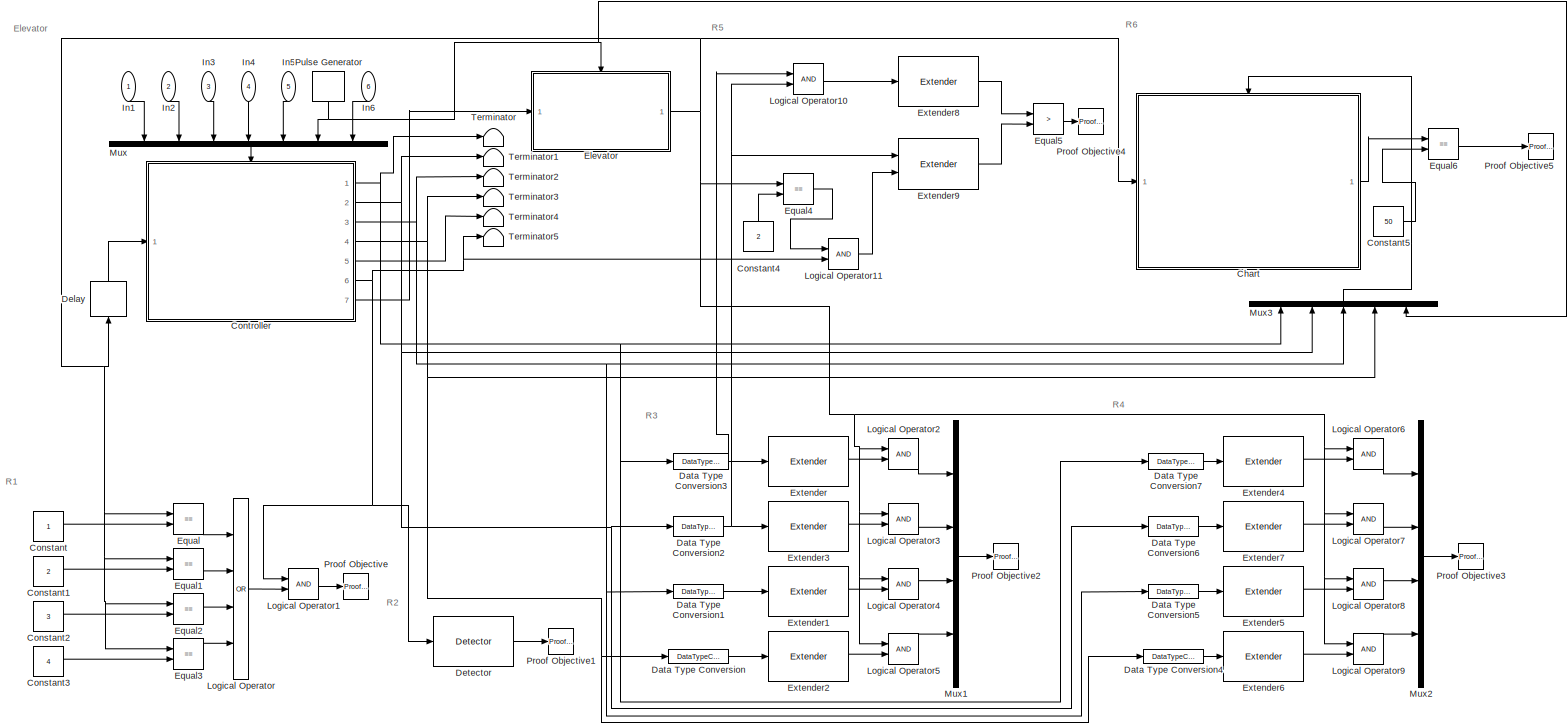
[diagram: root canvas - part 1/2, most of the canvas]
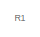
[diagram: root canvas - part 2/2, middle left region]
MODEL slx_c808c042c17c
KIND model
CONFIG AbsTol = auto
CONFIG EnableMultiTasking = off
CONFIG FixedStep = 0.01
CONFIG MaxStep = auto
CONFIG MinStep = auto
CONFIG RelTol = 1e-3
CONFIG SampleTimeConstraint = Unconstrained
CONFIG Solver = FixedStepAuto
CONFIG SolverName = FixedStepAuto
CONFIG StartTime = 0.0
CONFIG StopTime = 40000
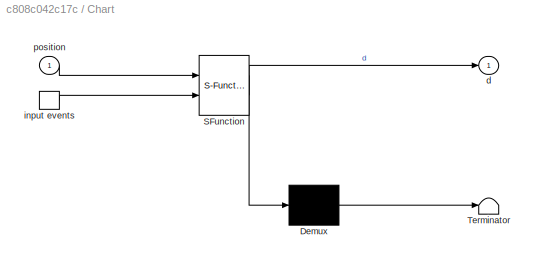
BLOCK [SubSystem] Chart
  ErrorFcn = Stateflow.Translate.translate
  PermitHierarchicalResolution = ExplicitOnly
  Ports = [1, 1, 0, 1]
  RequestExecContextInheritance = off
  SFBlockType = Chart
  TreatAsAtomicUnit = on
BLOCK [Demux] Chart/ Demux 
  Outputs = 1
  Ports = [1, 1]
BLOCK [S-Function] Chart/ SFunction 
  EnableBusSupport = on
  FunctionName = sf_sfun
  PortCounts = [2 2]
  Ports = [2, 2]
  SFcnIsStateOwnerBlock = off
  SFunctionDeploymentMode = off
  Tag = Stateflow S-Function 2
BLOCK [Terminator] Chart/ Terminator 
BLOCK [Outport] Chart/d
BLOCK [TriggerPort] Chart/input events
  Ports = [0, 1]
  ShowOutputPort = on
  StatesWhenEnabling = held
  TriggerType = either
  VariantControl = (inherit)
BLOCK [Inport] Chart/position
BLOCK [Constant] Constant
BLOCK [Constant] Constant1
  Value = 2
BLOCK [Constant] Constant2
  Value = 3
BLOCK [Constant] Constant3
  Value = 4
BLOCK [Constant] Constant4
  NameLocation = right
  Value = 2
BLOCK [Constant] Constant5
  Value = 50
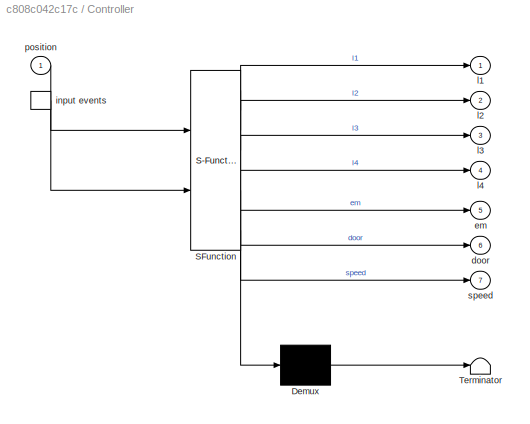
BLOCK [SubSystem] Controller
  ErrorFcn = Stateflow.Translate.translate
  PermitHierarchicalResolution = ExplicitOnly
  Ports = [1, 7, 0, 1]
  RequestExecContextInheritance = off
  SFBlockType = Chart
  TreatAsAtomicUnit = on
BLOCK [Demux] Controller/ Demux 
  Outputs = 1
  Ports = [1, 1]
BLOCK [S-Function] Controller/ SFunction 
  EnableBusSupport = on
  FunctionName = sf_sfun
  PortCounts = [2 8]
  Ports = [2, 8]
  SFcnIsStateOwnerBlock = off
  SFunctionDeploymentMode = off
  Tag = Stateflow S-Function 3
BLOCK [Terminator] Controller/ Terminator 
BLOCK [Outport] Controller/door
  Port = 6
BLOCK [Outport] Controller/em
  Port = 5
BLOCK [TriggerPort] Controller/input events
  Ports = [0, 1]
  ShowOutputPort = on
  StatesWhenEnabling = held
  TriggerType = either
  VariantControl = (inherit)
BLOCK [Outport] Controller/l1
BLOCK [Outport] Controller/l2
  Port = 2
BLOCK [Outport] Controller/l3
  Port = 3
BLOCK [Outport] Controller/l4
  Port = 4
BLOCK [Inport] Controller/position
BLOCK [Outport] Controller/speed
  Port = 7
BLOCK [DataTypeConversion] Data Type Conversion
  OutDataTypeStr = boolean
  RndMeth = Floor
  SaturateOnIntegerOverflow = off
BLOCK [DataTypeConversion] Data Type Conversion1
  OutDataTypeStr = boolean
  RndMeth = Floor
  SaturateOnIntegerOverflow = off
BLOCK [DataTypeConversion] Data Type Conversion2
  OutDataTypeStr = boolean
  RndMeth = Floor
  SaturateOnIntegerOverflow = off
BLOCK [DataTypeConversion] Data Type Conversion3
  OutDataTypeStr = boolean
  RndMeth = Floor
  SaturateOnIntegerOverflow = off
BLOCK [DataTypeConversion] Data Type Conversion4
  OutDataTypeStr = boolean
  RndMeth = Floor
  SaturateOnIntegerOverflow = off
BLOCK [DataTypeConversion] Data Type Conversion5
  OutDataTypeStr = boolean
  RndMeth = Floor
  SaturateOnIntegerOverflow = off
BLOCK [DataTypeConversion] Data Type Conversion6
  OutDataTypeStr = boolean
  RndMeth = Floor
  SaturateOnIntegerOverflow = off
BLOCK [DataTypeConversion] Data Type Conversion7
  OutDataTypeStr = boolean
  RndMeth = Floor
  SaturateOnIntegerOverflow = off
BLOCK [Delay] Delay
  DelayLength = 1
  DelayLengthUpperLimit = 2
  InputPortMap = u0
  InputProcessing = Columns as channels (frame based)
  NameLocation = right
  Ports = [1, 1]
  SampleTime = 1
BLOCK [Reference] Detector  REF=sldvlib/Temporal Operators/Detector
  Ports = [1, 1]
  SourceBlock = sldvlib/Temporal Operators/Detector
  SourceProductBaseCode = SL
  SourceType = Detector
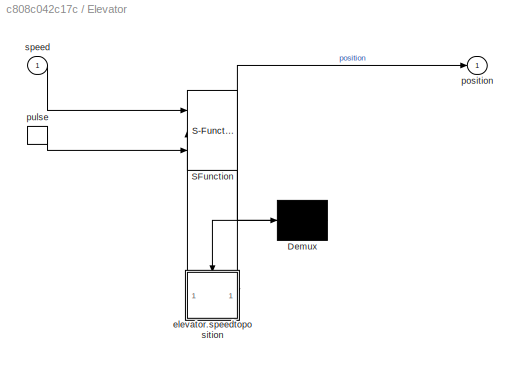
BLOCK [SubSystem] Elevator
  ErrorFcn = Stateflow.Translate.translate
  PermitHierarchicalResolution = ExplicitOnly
  Ports = [1, 1, 0, 1]
  RequestExecContextInheritance = off
  SFBlockType = Chart
  TreatAsAtomicUnit = on
BLOCK [Demux] Elevator/ Demux 
  Outputs = 1
  Ports = [1, 1]
BLOCK [S-Function] Elevator/ SFunction 
  EnableBusSupport = on
  FunctionName = sf_sfun
  PortCounts = [3 3]
  Ports = [3, 3]
  SFcnIsStateOwnerBlock = off
  SFunctionDeploymentMode = off
  Tag = Stateflow S-Function 1
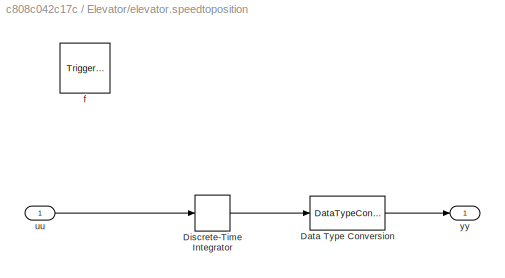
BLOCK [SubSystem] Elevator/elevator.speedtoposition
  Ports = [1, 1, 0, 1]
  PreDeleteFcn = Stateflow.SLINSF.SimulinkMan.removePreDeleteFcn
  RequestExecContextInheritance = off
  UndoDeleteFcn = Stateflow.SLINSF.SimulinkMan.restorePreDeleteFcn
BLOCK [DataTypeConversion] Elevator/elevator.speedtoposition/Data Type Conversion
  OutDataTypeStr = int8
  RndMeth = Round
  SaturateOnIntegerOverflow = off
BLOCK [DiscreteIntegrator] Elevator/elevator.speedtoposition/Discrete-Time Integrator
  ICPrevOutput = DiscIntNeverNeededParam
  ICPrevScaledInput = DiscIntNeverNeededParam
  InitialCondition = 1
  InitialConditionSetting = Auto
  LimitOutput = on
  LowerSaturationLimit = 1
  Ports = [1, 1]
  SampleTime = -1
  UpperSaturationLimit = 4
BLOCK [TriggerPort] Elevator/elevator.speedtoposition/f
  CopyFcn = Stateflow.SLINSF.SimulinkMan.removeBlockPreDeleteFcn
  Ports = []
  PreDeleteFcn = Stateflow.SLINSF.SimulinkMan.unsafePredeleteFcn
  StatesWhenEnabling = held
  TriggerType = function-call
  VariantControl = (inherit)
BLOCK [Inport] Elevator/elevator.speedtoposition/uu
  OutDataTypeStr = double
  PortDimensions = 1
  SignalType = real
  VarSizeSig = No
BLOCK [Outport] Elevator/elevator.speedtoposition/yy
BLOCK [Outport] Elevator/position
BLOCK [TriggerPort] Elevator/pulse
  Ports = [0, 1]
  ShowOutputPort = on
  StatesWhenEnabling = held
  TriggerType = either
  VariantControl = (inherit)
BLOCK [Inport] Elevator/speed
BLOCK [RelationalOperator] Equal
  InputSameDT = off
  Operator = ==
  OutDataTypeStr = boolean
  Ports = [2, 1]
  RndMeth = Simplest
BLOCK [RelationalOperator] Equal1
  InputSameDT = off
  Operator = ==
  OutDataTypeStr = boolean
  Ports = [2, 1]
  RndMeth = Simplest
BLOCK [RelationalOperator] Equal2
  InputSameDT = off
  Operator = ==
  OutDataTypeStr = boolean
  Ports = [2, 1]
  RndMeth = Simplest
BLOCK [RelationalOperator] Equal3
  InputSameDT = off
  Operator = ==
  OutDataTypeStr = boolean
  Ports = [2, 1]
  RndMeth = Simplest
BLOCK [RelationalOperator] Equal4
  InputSameDT = off
  Operator = ==
  OutDataTypeStr = boolean
  Ports = [2, 1]
  RndMeth = Simplest
BLOCK [RelationalOperator] Equal5
  InputSameDT = off
  Operator = >
  OutDataTypeStr = boolean
  Ports = [2, 1]
  RndMeth = Simplest
BLOCK [RelationalOperator] Equal6
  InputSameDT = off
  Operator = ==
  OutDataTypeStr = boolean
  Ports = [2, 1]
  RndMeth = Simplest
BLOCK [Reference] Extender  REF=sldvlib/Temporal Operators/Extender
  Ports = [1, 1]
  SourceBlock = sldvlib/Temporal Operators/Extender
  SourceProductBaseCode = SL
  SourceType = Extender
BLOCK [Reference] Extender1  REF=sldvlib/Temporal Operators/Extender
  Ports = [1, 1]
  SourceBlock = sldvlib/Temporal Operators/Extender
  SourceProductBaseCode = SL
  SourceType = Extender
BLOCK [Reference] Extender2  REF=sldvlib/Temporal Operators/Extender
  Ports = [1, 1]
  SourceBlock = sldvlib/Temporal Operators/Extender
  SourceProductBaseCode = SL
  SourceType = Extender
BLOCK [Reference] Extender3  REF=sldvlib/Temporal Operators/Extender
  Ports = [1, 1]
  SourceBlock = sldvlib/Temporal Operators/Extender
  SourceProductBaseCode = SL
  SourceType = Extender
BLOCK [Reference] Extender4  REF=sldvlib/Temporal Operators/Extender
  Ports = [1, 1]
  SourceBlock = sldvlib/Temporal Operators/Extender
  SourceProductBaseCode = SL
  SourceType = Extender
BLOCK [Reference] Extender5  REF=sldvlib/Temporal Operators/Extender
  Ports = [1, 1]
  SourceBlock = sldvlib/Temporal Operators/Extender
  SourceProductBaseCode = SL
  SourceType = Extender
BLOCK [Reference] Extender6  REF=sldvlib/Temporal Operators/Extender
  Ports = [1, 1]
  SourceBlock = sldvlib/Temporal Operators/Extender
  SourceProductBaseCode = SL
  SourceType = Extender
BLOCK [Reference] Extender7  REF=sldvlib/Temporal Operators/Extender
  Ports = [1, 1]
  SourceBlock = sldvlib/Temporal Operators/Extender
  SourceProductBaseCode = SL
  SourceType = Extender
BLOCK [Reference] Extender8  REF=sldvlib/Temporal Operators/Extender
  Ports = [1, 1]
  SourceBlock = sldvlib/Temporal Operators/Extender
  SourceProductBaseCode = SL
  SourceType = Extender
BLOCK [Reference] Extender9  REF=sldvlib/Temporal Operators/Extender
  Ports = [2, 1]
  SourceBlock = sldvlib/Temporal Operators/Extender
  SourceProductBaseCode = SL
  SourceType = Extender
BLOCK [Inport] In1
  NameLocation = left
BLOCK [Inport] In2
  NameLocation = left
  Port = 2
BLOCK [Inport] In3
  NameLocation = left
  Port = 3
BLOCK [Inport] In4
  NameLocation = left
  Port = 4
BLOCK [Inport] In5
  NameLocation = left
  Port = 5
BLOCK [Inport] In6
  NameLocation = left
  Port = 6
BLOCK [Logic] Logical Operator
  AllPortsSameDT = off
  Inputs = 4
  Operator = OR
  OutDataTypeStr = boolean
  Ports = [4, 1]
BLOCK [Logic] Logical Operator1
  AllPortsSameDT = off
  OutDataTypeStr = boolean
  Ports = [2, 1]
BLOCK [Logic] Logical Operator10
  AllPortsSameDT = off
  OutDataTypeStr = boolean
  Ports = [2, 1]
BLOCK [Logic] Logical Operator11
  AllPortsSameDT = off
  OutDataTypeStr = boolean
  Ports = [2, 1]
BLOCK [Logic] Logical Operator2
  AllPortsSameDT = off
  OutDataTypeStr = boolean
  Ports = [2, 1]
BLOCK [Logic] Logical Operator3
  AllPortsSameDT = off
  OutDataTypeStr = boolean
  Ports = [2, 1]
BLOCK [Logic] Logical Operator4
  AllPortsSameDT = off
  OutDataTypeStr = boolean
  Ports = [2, 1]
BLOCK [Logic] Logical Operator5
  AllPortsSameDT = off
  OutDataTypeStr = boolean
  Ports = [2, 1]
BLOCK [Logic] Logical Operator6
  AllPortsSameDT = off
  OutDataTypeStr = boolean
  Ports = [2, 1]
BLOCK [Logic] Logical Operator7
  AllPortsSameDT = off
  OutDataTypeStr = boolean
  Ports = [2, 1]
BLOCK [Logic] Logical Operator8
  AllPortsSameDT = off
  OutDataTypeStr = boolean
  Ports = [2, 1]
BLOCK [Logic] Logical Operator9
  AllPortsSameDT = off
  OutDataTypeStr = boolean
  Ports = [2, 1]
BLOCK [Mux] Mux
  DisplayOption = bar
  Inputs = 7
  NameLocation = left
  Ports = [7, 1]
BLOCK [Mux] Mux1
  DisplayOption = bar
  Ports = [4, 1]
BLOCK [Mux] Mux2
  DisplayOption = bar
  Ports = [4, 1]
BLOCK [Mux] Mux3
  DisplayOption = bar
  Inputs = 5
  NameLocation = right
  Ports = [5, 1]
BLOCK [Reference] Proof Objective  REF=sldvlib/Objectives and Constraints/Proof Objective
  AttributesFormatString = %<intervals>
  NameLocation = top
  Ports = [1]
  SourceBlock = sldvlib/Objectives and Constraints/Proof Objective
  SourceProductBaseCode = SL
  SourceType = Design Verifier Proof Objective
BLOCK [Reference] Proof Objective1  REF=sldvlib/Objectives and Constraints/Proof Objective
  AttributesFormatString = %<intervals>
  NameLocation = top
  Ports = [1]
  SourceBlock = sldvlib/Objectives and Constraints/Proof Objective
  SourceProductBaseCode = SL
  SourceType = Design Verifier Proof Objective
BLOCK [Reference] Proof Objective2  REF=sldvlib/Objectives and Constraints/Proof Objective
  AttributesFormatString = %<intervals>
  NameLocation = top
  Ports = [1]
  SourceBlock = sldvlib/Objectives and Constraints/Proof Objective
  SourceProductBaseCode = SL
  SourceType = Design Verifier Proof Objective
BLOCK [Reference] Proof Objective3  REF=sldvlib/Objectives and Constraints/Proof Objective
  AttributesFormatString = %<intervals>
  NameLocation = top
  Ports = [1]
  SourceBlock = sldvlib/Objectives and Constraints/Proof Objective
  SourceProductBaseCode = SL
  SourceType = Design Verifier Proof Objective
BLOCK [Reference] Proof Objective4  REF=sldvlib/Objectives and Constraints/Proof Objective
  AttributesFormatString = %<intervals>
  NameLocation = top
  Ports = [1]
  SourceBlock = sldvlib/Objectives and Constraints/Proof Objective
  SourceProductBaseCode = SL
  SourceType = Design Verifier Proof Objective
BLOCK [Reference] Proof Objective5  REF=sldvlib/Objectives and Constraints/Proof Objective
  AttributesFormatString = %<intervals>
  NameLocation = top
  Ports = [1]
  SourceBlock = sldvlib/Objectives and Constraints/Proof Objective
  SourceProductBaseCode = SL
  SourceType = Design Verifier Proof Objective
BLOCK [DiscretePulseGenerator] Pulse Generator
  NameLocation = left
  Period = 1
  PhaseDelay = 1
  Ports = [0, 1]
  PulseType = Time based
  PulseWidth = 99
BLOCK [Terminator] Terminator
BLOCK [Terminator] Terminator1
BLOCK [Terminator] Terminator2
BLOCK [Terminator] Terminator3
BLOCK [Terminator] Terminator4
BLOCK [Terminator] Terminator5
ANNOTATION (root): Elevator
ANNOTATION (root): R1
ANNOTATION (root): R2
ANNOTATION (root): R3
ANNOTATION (root): R4
ANNOTATION (root): R5
ANNOTATION (root): R6
LINE Chart:1 -> Equal6:1
LINE Constant1:1 -> Equal1:2
LINE Constant2:1 -> Equal2:2
LINE Constant3:1 -> Equal3:2
LINE Constant4:1 -> Equal4:2
LINE Constant5:1 -> Equal6:2
LINE Constant:1 -> Equal:2
NET Controller:1 -> Data Type Conversion3:1, Data Type Conversion7:1, Mux3:1, Terminator:1
NET Controller:2 -> Data Type Conversion2:1, Data Type Conversion6:1, Mux3:2, Terminator1:1
NET Controller:3 -> Data Type Conversion1:1, Data Type Conversion5:1, Mux3:3, Terminator2:1
NET Controller:4 -> Data Type Conversion4:1, Data Type Conversion:1, Mux3:4, Terminator3:1
LINE Controller:5 -> Terminator4:1
NET Controller:6 -> Detector:1, Logical Operator11:2, Logical Operator1:1, Terminator5:1
LINE Controller:7 -> Elevator:1
LINE Data Type Conversion1:1 -> Extender1:1
NET Data Type Conversion2:1 -> Extender3:1, Extender9:1, Logical Operator10:2
NET Data Type Conversion3:1 -> Extender:1, Logical Operator10:1
LINE Data Type Conversion4:1 -> Extender6:1
LINE Data Type Conversion5:1 -> Extender5:1
LINE Data Type Conversion6:1 -> Extender7:1
LINE Data Type Conversion7:1 -> Extender4:1
LINE Data Type Conversion:1 -> Extender2:1
LINE Delay:1 -> Controller:1
LINE Detector:1 -> Proof Objective1:1
NET Elevator:1 -> Chart:1, Delay:1, Equal1:1, Equal2:1, Equal3:1, Equal4:1, Equal:1, Logical Operator2:1, Logical Operator3:1, Logical Operator4:1, Logical Operator5:1, Logical Operator6:1, Logical Operator7:1, Logical Operator8:1, Logical Operator9:1
LINE Equal1:1 -> Logical Operator:2
LINE Equal2:1 -> Logical Operator:3
LINE Equal3:1 -> Logical Operator:4
LINE Equal4:1 -> Logical Operator11:1
LINE Equal5:1 -> Proof Objective4:1
LINE Equal6:1 -> Proof Objective5:1
LINE Equal:1 -> Logical Operator:1
LINE Extender1:1 -> Logical Operator4:2
LINE Extender2:1 -> Logical Operator5:2
LINE Extender3:1 -> Logical Operator3:2
LINE Extender4:1 -> Logical Operator6:2
LINE Extender5:1 -> Logical Operator8:2
LINE Extender6:1 -> Logical Operator9:2
LINE Extender7:1 -> Logical Operator7:2
LINE Extender8:1 -> Equal5:1
LINE Extender9:1 -> Equal5:2
LINE Extender:1 -> Logical Operator2:2
LINE In1:1 -> Mux:1
LINE In2:1 -> Mux:2
LINE In3:1 -> Mux:3
LINE In4:1 -> Mux:4
LINE In5:1 -> Mux:5
LINE In6:1 -> Mux:7
LINE Logical Operator10:1 -> Extender8:1
LINE Logical Operator11:1 -> Extender9:2
LINE Logical Operator1:1 -> Proof Objective:1
LINE Logical Operator2:1 -> Mux1:1
LINE Logical Operator3:1 -> Mux1:2
LINE Logical Operator4:1 -> Mux1:3
LINE Logical Operator5:1 -> Mux1:4
LINE Logical Operator6:1 -> Mux2:1
LINE Logical Operator7:1 -> Mux2:2
LINE Logical Operator8:1 -> Mux2:3
LINE Logical Operator9:1 -> Mux2:4
LINE Logical Operator:1 -> Logical Operator1:2
LINE Mux1:1 -> Proof Objective2:1
LINE Mux2:1 -> Proof Objective3:1
LINE Mux3:1 -> Chart:trigger
LINE Mux:1 -> Controller:trigger
NET Pulse Generator:1 -> Elevator:trigger, Mux3:5, Mux:6
note: NET lines group one-source signal fan-out (src -> all destinations, sorted); 1:1 wires keep LINE
CHART Elevator states=2 transitions=1
  STATE_LABEL 'elevator\nen, du: position=speedtoposition(speed)\n'
  STATE_LABEL 'yy = speedtoposition(uu)'
  STATE_LABEL 'yy = speedtoposition(uu)'
CHART Chart states=6 transitions=8
  STATE_LABEL 'R6\nen:time=0; floor1=0; floor2=0; floor3=0; floor4=0; d=0;\non pulse: time_counter();\non one: floor1= time;\non two: floor2= time;\non three: floor3= time;\non four: floor4= time;'
  STATE_LABEL 'time_counter'
  STATE_LABEL 'SCRIPT:\nfunction time_counter\ntime =(time+1);\n\nend\n'
  STATE_LABEL 'floor3\nen: d=time-floor3;\n\n'
  STATE_LABEL 'floor2\nen: d=time-floor2;\n\n\n'
  STATE_LABEL 'floor4\nen: d=time-floor4;\n'
  STATE_LABEL 'floor1\nen: d=time-floor1;\n\n'
  STATE_LABEL '[position==2]'
  STATE_LABEL '[position==3]'
  STATE_LABEL '[position==1]'
  STATE_LABEL '[position==2]'
  STATE_LABEL '[position==3]'
  STATE_LABEL '[position==4]'
  STATE_LABEL 'time_counter'
  STATE_LABEL 'SCRIPT:\nfunction time_counter\ntime =(time+1);\n\nend\n'
  STATE_LABEL 'floor3\nen: d=time-floor3;\n\n'
  STATE_LABEL 'floor2\nen: d=time-floor2;\n\n\n'
  STATE_LABEL 'floor4\nen: d=time-floor4;\n'
  STATE_LABEL 'floor1\nen: d=time-floor1;\n\n'
CHART Controller states=14 transitions=20
  STATE_LABEL 'controller\nen: em=0; go1=0; go2=0; go3=0; go4=0; door=0;t=0; l1=0;l2=0;l3=0;l4=0;\non Floor_1:  go1=1;l1=1;\non Floor_2:  go2=1;l2=1;\non Floor_3:  go3=1;l3=1;\non Floor_4:  go4=1;l4=1;\non emergency: em=1;\non restart: em=0;\nen, du: controllerlogic();\n'
  STATE_LABEL 'controllerlogic'
  STATE_LABEL 'SCRIPT:\nfunction controllerlogic\nmax_speed= 0.2;\ncurrent_floor= round(position);\n% destination_floor= 1;\n% go=1;\n\nif em == 0 && go1==1\n    destination_floor= 1;\n        if destination_floor-current_floor==0\n            speed= 0;\n            go1=0;\n        elseif destination_floor-current_floor> 0\n            speed= max_speed;          \n        elseif destination_floor-(current_floor+1)< 0\n        ...<+1442ch>'
  STATE_LABEL 'floor3\n'
  STATE_LABEL 'closed\ndu:door=0;'
  STATE_LABEL 'open\nen,du: door=1;l3=0;\nen,du: t=elapsed(sec);\nexit: door=0;go3=0;'
  STATE_LABEL '[t>=5]'
  STATE_LABEL '[l3==1]'
  STATE_LABEL 'floor2\n\n'
  STATE_LABEL 'closed\ndu:door=0;'
  STATE_LABEL 'open\nen,du: door=1;l2=0;\nen,du: t=elapsed(sec);\nexit: door=0;go2=0;'
  STATE_LABEL '[t>=5]'
  STATE_LABEL '[l2==1]'
  STATE_LABEL 'floor4\n\n'
  STATE_LABEL 'closed\ndu:door=0;'
  STATE_LABEL 'open\nen,du: door=1;l4=0;\nen,du: t=elapsed(sec);\nexit: door=0;go4=0;'
  STATE_LABEL '[t>=5]'
  STATE_LABEL '[l4==1]'
  STATE_LABEL 'floor1\n'
  STATE_LABEL 'closed\ndu:door=0;'
  STATE_LABEL 'open\nen,du: door=1;l1=0;\nen,du: t=elapsed(sec);\nexit: door=0;go1=0;'
  STATE_LABEL '[t>=5]'
  STATE_LABEL '[l1==1]'
  STATE_LABEL '[position==2]'
  STATE_LABEL '[position==3]'
  STATE_LABEL '[position==1]'
  STATE_LABEL '[position==2]'
  STATE_LABEL '[position==3]'
  STATE_LABEL '[position==4]'
  STATE_LABEL 'controllerlogic'
  STATE_LABEL 'SCRIPT:\nfunction controllerlogic\nmax_speed= 0.2;\ncurrent_floor= round(position);\n% destination_floor= 1;\n% go=1;\n\nif em == 0 && go1==1\n    destination_floor= 1;\n        if destination_floor-current_floor==0\n            speed= 0;\n            go1=0;\n        elseif destination_floor-current_floor> 0\n            speed= max_speed;          \n        elseif destination_floor-(current_floor+1)< 0\n        ...<+1442ch>'
  STATE_LABEL 'floor3\n'
  STATE_LABEL 'closed\ndu:door=0;'
  STATE_LABEL 'open\nen,du: door=1;l3=0;\nen,du: t=elapsed(sec);\nexit: door=0;go3=0;'
  STATE_LABEL '[t>=5]'
  STATE_LABEL '[l3==1]'
  STATE_LABEL 'closed\ndu:door=0;'
  STATE_LABEL 'open\nen,du: door=1;l3=0;\nen,du: t=elapsed(sec);\nexit: door=0;go3=0;'
  STATE_LABEL 'floor2\n\n'
  STATE_LABEL 'closed\ndu:door=0;'
CHART  states=0 transitions=0
CHART  states=0 transitions=0
CHART  states=0 transitions=0
